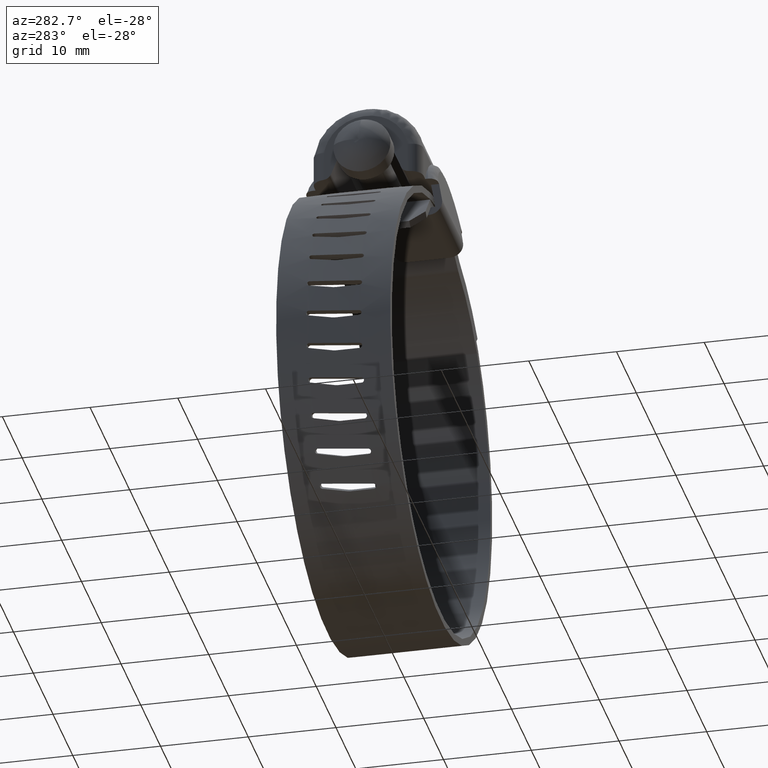
[diagram: clean part render]
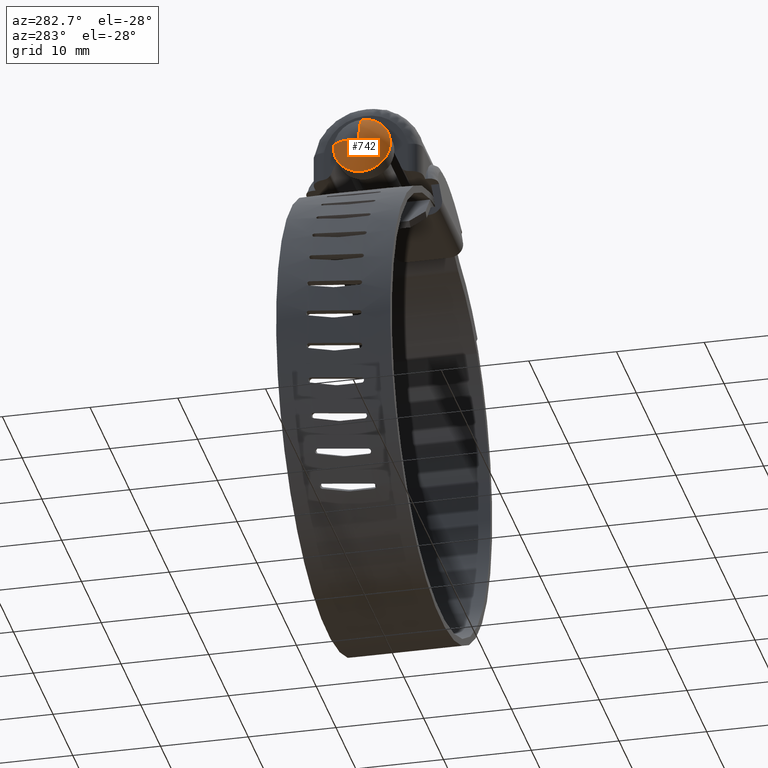
[diagram: same view with one face highlighted and labeled with its STEP entity id]
A machine part, auxiliary view. The second image highlights one B-rep face of the part: STEP entity #742.
In plain terms, the highlighted face is a freeform B-spline surface patch.
Its self-contained STEP definition (entity closure, byte-faithful):
#102=CARTESIAN_POINT('',(-11.249998545019331,-2.277955569182310,18.145147428062572));
#103=VERTEX_POINT('',#102);
#109=CARTESIAN_POINT('',(-11.249999150748200,-3.249999999999921,15.827084347569469));
#110=VERTEX_POINT('',#109);
#111=CARTESIAN_POINT('',(-11.249999150748200,-3.249999999999921,15.827084347569469));
#112=CARTESIAN_POINT('',(-11.249999091033850,-3.250039438003743,16.055605071682638));
#113=CARTESIAN_POINT('',(-11.249998989173720,-3.208704369616029,16.445413624482288));
#114=CARTESIAN_POINT('',(-11.249998843841089,-3.045523947456444,17.001586769283129));
#115=CARTESIAN_POINT('',(-11.249998694382290,-2.771597397452055,17.573550541590080));
#116=CARTESIAN_POINT('',(-11.249998596707661,-2.479359509141550,17.947341390321199));
#117=CARTESIAN_POINT('',(-11.249998545019331,-2.277955569182310,18.145147428062572));
#118=B_SPLINE_CURVE_WITH_KNOTS('',3,(#111,#112,#113,#114,#115,#116,#117),.UNSPECIFIED.,.F.,.U.,(4,1,1,1,4),(0.000000021218805,0.685558093364061,1.169481719345468,1.734053356495156,2.580921086518444),.UNSPECIFIED.);
#119=EDGE_CURVE('',#110,#103,#118,.T.);
#121=CARTESIAN_POINT('',(-11.250000000000000,0.0,12.577083000000201));
#122=VERTEX_POINT('',#121);
#123=CARTESIAN_POINT('',(-11.250000000000000,0.0,12.577083000000201));
#124=CARTESIAN_POINT('',(-11.250000000012760,-0.239302218373852,12.577034085967441));
#125=CARTESIAN_POINT('',(-11.249999988818670,-0.624818518389027,12.619872983500549));
#126=CARTESIAN_POINT('',(-11.249999944260280,-1.199683913613845,12.790393252210510));
#127=CARTESIAN_POINT('',(-11.249999881484330,-1.691897525726736,13.030630573990630));
#128=CARTESIAN_POINT('',(-11.249999788016090,-2.174191434755318,13.388324520851130));
#129=CARTESIAN_POINT('',(-11.249999678735101,-2.567488149279050,13.806531435663050));
#130=CARTESIAN_POINT('',(-11.249999547214170,-2.894933802656532,14.309848849021000));
#131=CARTESIAN_POINT('',(-11.249999373063901,-3.171041517807696,14.976304623431520));
#132=CARTESIAN_POINT('',(-11.249999234127200,-3.250131678179828,15.508001298144469));
#133=CARTESIAN_POINT('',(-11.249999150748200,-3.249999999999921,15.827084347569469));
#134=B_SPLINE_CURVE_WITH_KNOTS('',3,(#123,#124,#125,#126,#127,#128,#129,#130,#131,#132,#133),.UNSPECIFIED.,.F.,.U.,(4,1,1,1,1,1,1,1,4),(0.000000087969224,0.717896314980257,1.156628013210540,1.794770507259366,2.353157546221477,2.951379142821399,3.509769002435407,4.147912741125874,5.105121134058807),.UNSPECIFIED.);
#135=EDGE_CURVE('',#122,#110,#134,.T.);
#137=CARTESIAN_POINT('',(-11.249999999999700,2.277955147171911,13.509019077785430));
#138=VERTEX_POINT('',#137);
#139=CARTESIAN_POINT('',(-11.249999999999700,2.277955147171911,13.509019077785430));
#140=CARTESIAN_POINT('',(-11.249999999999011,2.118568678127858,13.352344824424391));
#141=CARTESIAN_POINT('',(-11.249999999998030,1.798280189641909,13.096822625646251));
#142=CARTESIAN_POINT('',(-11.249999999997620,1.273129233963324,12.819793303063710));
#143=CARTESIAN_POINT('',(-11.249999999998090,0.683607031364321,12.627355234446950));
#144=CARTESIAN_POINT('',(-11.249999999999130,0.249793997382766,12.577033714002001));
#145=CARTESIAN_POINT('',(-11.250000000000000,0.0,12.577083000000201));
#146=B_SPLINE_CURVE_WITH_KNOTS('',3,(#139,#140,#141,#142,#143,#144,#145),.UNSPECIFIED.,.F.,.U.,(4,1,1,1,4),(0.000000021592431,0.670490868988767,1.222671448209193,1.774825588060061,2.524197972423836),.UNSPECIFIED.);
#147=EDGE_CURVE('',#138,#122,#146,.T.);
#188=CARTESIAN_POINT('',(-11.250000000017989,3.228262826024923,16.202341745425731));
#189=VERTEX_POINT('',#188);
#190=CARTESIAN_POINT('',(-11.250000000017989,3.228262826024923,16.202341745425731));
#191=CARTESIAN_POINT('',(-11.250000000016209,3.253187395842011,15.988170398321250));
#192=CARTESIAN_POINT('',(-11.250000000012941,3.259650180881493,15.585812480298380));
#193=CARTESIAN_POINT('',(-11.250000000007880,3.143024393483955,14.900069966612870));
#194=CARTESIAN_POINT('',(-11.250000000003190,2.848317486191295,14.181029933400451));
#195=CARTESIAN_POINT('',(-11.250000000000631,2.486724202620111,13.714069318137650));
#196=CARTESIAN_POINT('',(-11.249999999999700,2.277955147171911,13.509019077785430));
#197=B_SPLINE_CURVE_WITH_KNOTS('',3,(#190,#191,#192,#193,#194,#195,#196),.UNSPECIFIED.,.F.,.U.,(4,1,1,1,4),(0.000000031724528,0.646849441137903,1.201302578317485,2.079157388805786,2.957028089092057),.UNSPECIFIED.);
#198=EDGE_CURVE('',#189,#138,#197,.T.);
#200=CARTESIAN_POINT('',(-11.249998301496779,0.0,19.077084263439279));
#201=VERTEX_POINT('',#200);
#215=CARTESIAN_POINT('',(-11.249998545019331,-2.277955569182310,18.145147428062572));
#216=CARTESIAN_POINT('',(-11.249998504081139,-2.118563770474786,18.301813828613039));
#217=CARTESIAN_POINT('',(-11.249998426533409,-1.746647657425480,18.598581316035030));
#218=CARTESIAN_POINT('',(-11.249998329236490,-0.985871504258828,18.970926936143108));
#219=CARTESIAN_POINT('',(-11.249998301429549,-0.368148096064486,19.077341318611371));
#220=CARTESIAN_POINT('',(-11.249998301496779,0.0,19.077084263439279));
#221=B_SPLINE_CURVE_WITH_KNOTS('',3,(#215,#216,#217,#218,#219,#220),.UNSPECIFIED.,.F.,.U.,(4,1,1,4),(0.000000021591153,0.670491056348562,1.419850616696590,2.524198677777760),.UNSPECIFIED.);
#222=EDGE_CURVE('',#103,#201,#221,.T.);
#677=CARTESIAN_POINT('',(-12.750000186190929,0.0,15.827083000000197));
#678=CARTESIAN_POINT('',(-12.893125108442939,2.137163272483706,16.075510429518463));
#679=CARTESIAN_POINT('',(-11.103121444068714,3.331433993986725,16.214334453546879));
#680=CARTESIAN_POINT('',(-12.750000186190933,0.0,15.827083000000201));
#681=CARTESIAN_POINT('',(-12.893125108442941,2.151553634235111,15.951713501488033));
#682=CARTESIAN_POINT('',(-11.103121444068712,3.353865850710840,16.021358418584217));
#683=CARTESIAN_POINT('',(-12.750000186190929,0.0,15.827083000000201));
#684=CARTESIAN_POINT('',(-12.893125108442943,2.151553634235111,15.827083000000201));
#685=CARTESIAN_POINT('',(-11.103121444068718,3.353865850710841,15.827083000000204));
#686=CARTESIAN_POINT('',(-12.750000186190928,0.0,15.827083000000203));
#687=CARTESIAN_POINT('',(-12.893125108442945,2.151553634235111,13.675529365765088));
#688=CARTESIAN_POINT('',(-11.103121444068712,3.353865850710839,12.473217149289358));
#689=CARTESIAN_POINT('',(-12.750000186190929,0.0,15.827083000000201));
#690=CARTESIAN_POINT('',(-12.893125108442943,0.0,13.675529365765092));
#691=CARTESIAN_POINT('',(-11.103121444068718,0.0,12.473217149289361));
#692=CARTESIAN_POINT('',(-12.750000186190928,0.0,15.827083000000203));
#693=CARTESIAN_POINT('',(-12.893125108442945,-2.151553634235111,13.675529365765088));
#694=CARTESIAN_POINT('',(-11.103121444068712,-3.353865850710839,12.473217149289358));
#695=CARTESIAN_POINT('',(-12.750000186190929,0.0,15.827083000000201));
#696=CARTESIAN_POINT('',(-12.893125108442943,-2.151553634235111,15.827083000000201));
#697=CARTESIAN_POINT('',(-11.103121444068718,-3.353865850710841,15.827083000000204));
#698=CARTESIAN_POINT('',(-12.750000186190928,0.0,15.827083000000203));
#699=CARTESIAN_POINT('',(-12.893125108442945,-2.151553634235111,17.978636634235315));
#700=CARTESIAN_POINT('',(-11.103121444068712,-3.353865850710839,19.180948850711040));
#701=CARTESIAN_POINT('',(-12.750000186190929,0.0,15.827083000000201));
#702=CARTESIAN_POINT('',(-12.893125108442943,0.0,17.978636634235311));
#703=CARTESIAN_POINT('',(-11.103121444068718,0.0,19.180948850711044));
#711=(BOUNDED_SURFACE()B_SPLINE_SURFACE(2,2,((#677,#680,#683,#686,#689,#692,#695,#698,#701),(#678,#681,#684,#687,#690,#693,#696,#699,#702),(#679,#682,#685,#688,#691,#694,#697,#700,#703)),.UNSPECIFIED.,.F.,.F.,.U.)B_SPLINE_SURFACE_WITH_KNOTS((3,3),(3,2,2,2,3),(0.0,0.318741489357906),(0.230000004172325,0.250000000000000,0.500000000000000,0.750000000000000,1.0),.UNSPECIFIED.)GEOMETRIC_REPRESENTATION_ITEM()RATIONAL_B_SPLINE_SURFACE(((0.956886126402807,0.976568547383107,1.0,0.707106781186548,1.0,0.707106781186548,1.0,0.707106781186548,1.0),(0.823976643594955,0.840925217442647,0.861102090269095,0.608891127323188,0.861102090269095,0.608891127323188,0.861102090269095,0.608891127323188,0.861102090269095),(0.945249759786886,0.964692829542315,0.987839340236162,0.698507896203835,0.987839340236162,0.698507896203835,0.987839340236162,0.698507896203835,0.987839340236162)))REPRESENTATION_ITEM('')SURFACE());
#712=ORIENTED_EDGE('',*,*,#198,.T.);
#713=ORIENTED_EDGE('',*,*,#147,.T.);
#714=ORIENTED_EDGE('',*,*,#135,.T.);
#715=ORIENTED_EDGE('',*,*,#119,.T.);
#716=ORIENTED_EDGE('',*,*,#222,.T.);
#717=CARTESIAN_POINT('',(-12.750000186190929,1.160246E-016,15.827083000000201));
#718=VERTEX_POINT('',#717);
#719=CARTESIAN_POINT('',(-12.750000186190929,1.160246E-016,15.827083000000201));
#720=CARTESIAN_POINT('',(-12.773371061930870,8.599810E-017,16.176228529533759));
#721=CARTESIAN_POINT('',(-12.731103654290569,4.481521E-017,16.743935958164151));
#722=CARTESIAN_POINT('',(-12.489009189876930,5.517112E-018,17.526824410938691));
#723=CARTESIAN_POINT('',(-12.187274493253550,-1.113886E-017,18.096654274374771));
#724=CARTESIAN_POINT('',(-11.769926588011391,-1.437226E-017,18.636111018631279));
#725=CARTESIAN_POINT('',(-11.452784034398150,-7.292920E-018,18.926283401463330));
#726=CARTESIAN_POINT('',(-11.249998301496779,0.0,19.077084263439279));
#727=B_SPLINE_CURVE_WITH_KNOTS('',3,(#719,#720,#721,#722,#723,#724,#725,#726),.UNSPECIFIED.,.F.,.U.,(4,1,1,1,1,4),(0.000000023152546,1.049731416207691,1.691241825250209,2.449361776899076,2.974234459839171,3.732368550108661),.UNSPECIFIED.);
#728=EDGE_CURVE('',#718,#201,#727,.T.);
#729=ORIENTED_EDGE('',*,*,#728,.F.);
#730=CARTESIAN_POINT('',(-12.750000186190929,1.160246E-016,15.827083000000201));
#731=CARTESIAN_POINT('',(-12.773350546642339,0.346808074891770,15.867396558734709));
#732=CARTESIAN_POINT('',(-12.734034837893759,0.871829236309999,15.928425908861460));
#733=CARTESIAN_POINT('',(-12.504422684578531,1.652183334377241,16.019135592546249));
#734=CARTESIAN_POINT('',(-12.095676083087190,2.449013403461797,16.111760471053401));
#735=CARTESIAN_POINT('',(-11.593339925025081,2.974930443882427,16.172893959706119));
#736=CARTESIAN_POINT('',(-11.250000000017989,3.228262826024923,16.202341745425731));
#737=B_SPLINE_CURVE_WITH_KNOTS('',3,(#730,#731,#732,#733,#734,#735,#736),.UNSPECIFIED.,.F.,.U.,(4,1,1,1,4),(0.000000023151767,1.049730820804593,1.574604510339133,2.449360387645132,3.732366433137614),.UNSPECIFIED.);
#738=EDGE_CURVE('',#718,#189,#737,.T.);
#739=ORIENTED_EDGE('',*,*,#738,.T.);
#740=EDGE_LOOP('',(#712,#713,#714,#715,#716,#729,#739));
#741=FACE_OUTER_BOUND('',#740,.T.);
#742=ADVANCED_FACE('',(#741),#711,.T.);